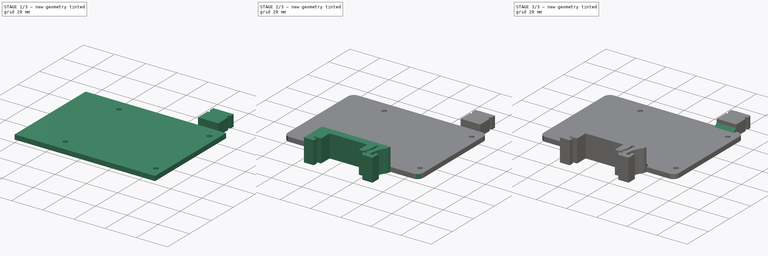
[diagram: build sequence overview — one tinted view per stage of 3, left to right]
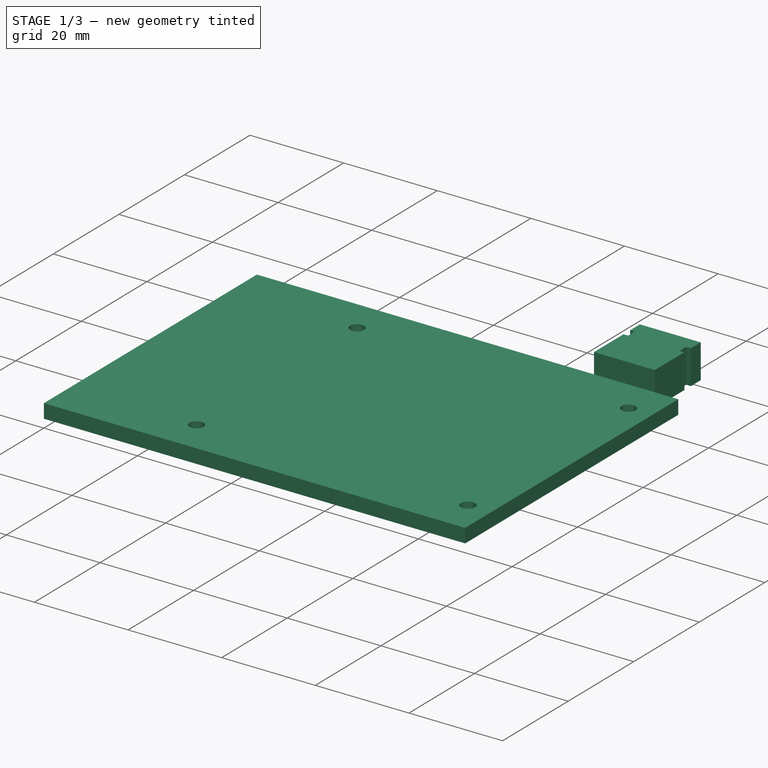
[diagram: stage 1 of 3 — iso view after this stage's code; geometry added in this stage tinted green]
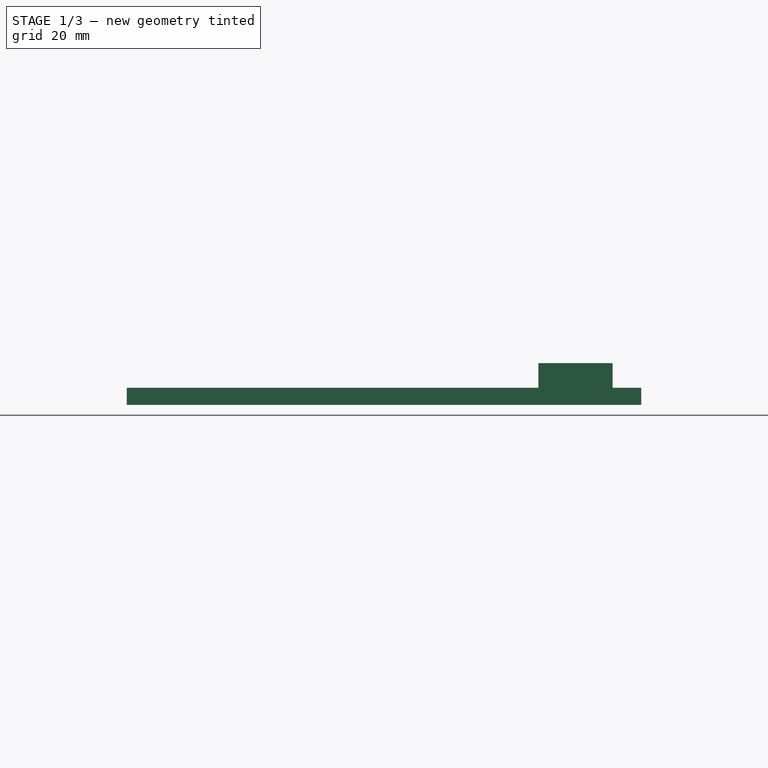
[diagram: stage 1 of 3 — front view after this stage's code; geometry added in this stage tinted green]
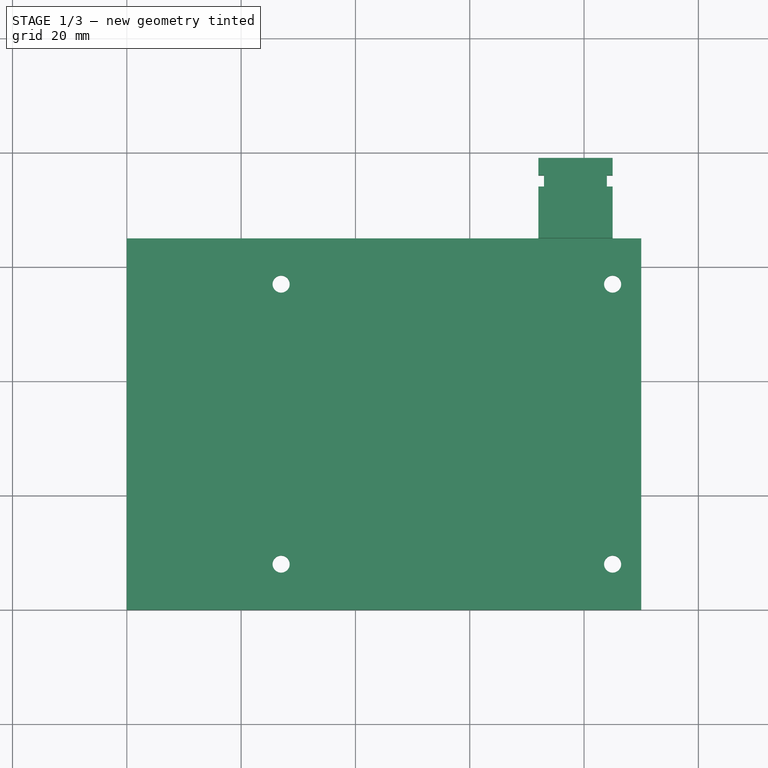
[diagram: stage 1 of 3 — top view after this stage's code; geometry added in this stage tinted green]
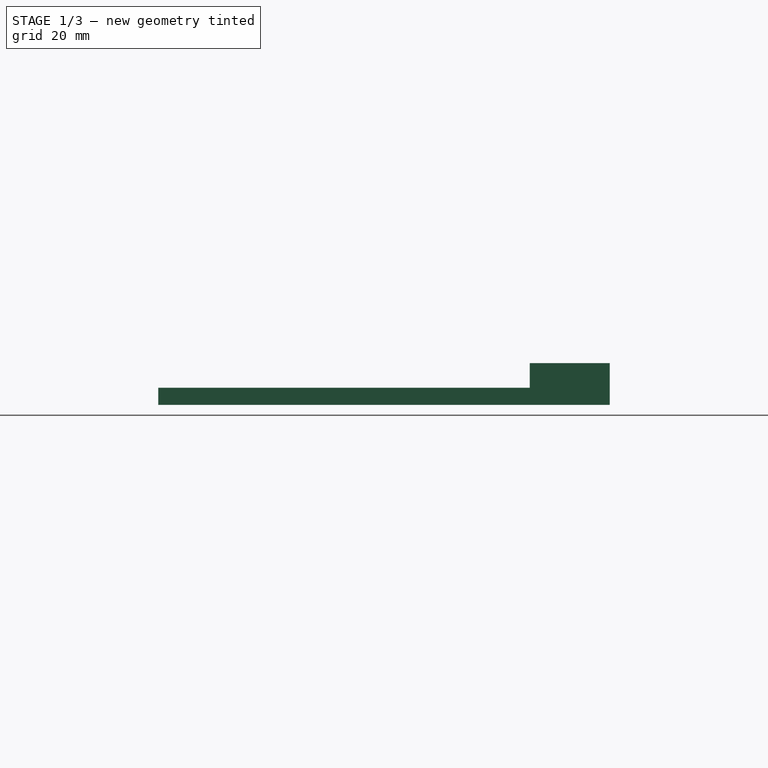
[diagram: stage 1 of 3 — right view after this stage's code; geometry added in this stage tinted green]
FCSTD DOCUMENT  (FreeCAD 0.19R24291 (Git))
Label: RPiDIN
License: All rights reserved
LicenseURL: http://en.wikipedia.org/wiki/All_rights_reserved
objects: Sketcher::SketchObject×3, PartDesign::Pad×3, PartDesign::Fillet×2, PartDesign::Chamfer×1, PartDesign::Body×1
note: 16 computed .brp shape members not serialized (recipe doc carries the construction recipe); baked Part::Feature solids carry a one-line shape summary decoded from their .brp

FEATURE [Sketcher::SketchObject] Sketch
  FullyConstrained = true
  sketch-geometry (16):
    g0: LineSegment StartX=90 StartY=0 StartZ=0 EndX=0 EndY=0 EndZ=0
    g1: LineSegment StartX=0 StartY=0 StartZ=0 EndX=0 EndY=65 EndZ=0
    g2: LineSegment StartX=0 StartY=65 StartZ=0 EndX=90 EndY=65 EndZ=0
    g3: LineSegment StartX=90 StartY=65 StartZ=0 EndX=90 EndY=0 EndZ=0
    g4: Circle CenterX=27 CenterY=57 CenterZ=0 NormalX=0 NormalY=0 NormalZ=-1 AngleXU=0 Radius=1.5
    g5: Circle CenterX=85 CenterY=57 CenterZ=0 NormalX=0 NormalY=0 NormalZ=-1 AngleXU=0 Radius=1.5
    g6: Circle CenterX=85 CenterY=8 CenterZ=0 NormalX=0 NormalY=0 NormalZ=-1 AngleXU=0 Radius=1.5
    g7: Circle CenterX=27 CenterY=8 CenterZ=0 NormalX=0 NormalY=0 NormalZ=-1 AngleXU=0 Radius=1.5
    g8: LineSegment StartX=27 StartY=8 StartZ=0 EndX=85 EndY=8 EndZ=0
    g9: LineSegment StartX=85 StartY=8 StartZ=0 EndX=85 EndY=57 EndZ=0
    g10: LineSegment StartX=85 StartY=57 StartZ=0 EndX=27 EndY=57 EndZ=0
    g11: LineSegment StartX=27 StartY=57 StartZ=0 EndX=27 EndY=8 EndZ=0
    g12: LineSegment StartX=27 StartY=8 StartZ=0 EndX=85 EndY=57 EndZ=0
    g13: LineSegment StartX=27 StartY=57 StartZ=0 EndX=85 EndY=8 EndZ=0
    g14: GeomPoint X=56 Y=32.5 Z=0
    g15: LineSegment StartX=0 StartY=32.5 StartZ=0 EndX=90 EndY=32.5 EndZ=0
  constraints (39):
    c: Coincident(g8,g9)
    c: Coincident(g9,g10)
    c: Coincident(g10,g11)
    c: Coincident(g11,g8)
    c: Horizontal(g8)
    c: Horizontal(g10)
    c: Vertical(g9)
    c: Vertical(g11)
    c: Coincident(g9,g5)
    c: Equal(g4,g5)
    c: Equal(g5,g6)
    c: Equal(g6,g7)
    c: Diameter(g4) = 3
    c: Coincident(g8,g6)
    c: Coincident(g8,g7)
    c: Coincident(g10,g4)
    c: Vertical(g1)
    c: Vertical(g3)
    c: Horizontal(g2)
    c: Horizontal(g0)
    c: Coincident(g0,g1)
    c: Coincident(g1,g2)
    c: Coincident(g2,g3)
    c: Coincident(g0,g3)
    c: DistanceY(g1,g1) = 65
    c: DistanceX(g2,g2) = 90
    c: DistanceY(g11,g11) = 49
    c: DistanceX(g10,g10) = 58
    c: Coincident(g12,g7)
    c: Coincident(g12,g5)
    c: Coincident(g13,g4)
    c: Coincident(g13,g6)
    c: PointOnObject(g14,g12)
    c: PointOnObject(g14,g13)
    c: Coincident(g0,g-1)
    c: Symmetric(g1,g0,g15)
    c: Symmetric(g2,g0,g15)
    c: PointOnObject(g14,g15)
    c: DistanceX(g5,g2) = 5
FEATURE [PartDesign::Pad] Pad
  Direction = (1,1,1)
  Length = 3
  Length2 = 100
  Profile = -> Sketch
  Refine = true
  Type = 0
FEATURE [Sketcher::SketchObject] Sketch002
  ExternalGeometry = -> [Pad]
  FullyConstrained = true
  MapMode = 5
  Support = -> [XY_Plane]
  sketch-geometry (13):
    g0: LineSegment StartX=85 StartY=65 StartZ=0 EndX=85 EndY=74 EndZ=0
    g1: LineSegment StartX=85 StartY=74 StartZ=0 EndX=84 EndY=74 EndZ=0
    g2: LineSegment StartX=84 StartY=74 StartZ=0 EndX=84 EndY=76 EndZ=0
    g3: LineSegment StartX=84 StartY=76 StartZ=0 EndX=85 EndY=76 EndZ=0
    g4: LineSegment StartX=85 StartY=76 StartZ=0 EndX=85 EndY=79 EndZ=0
    g5: LineSegment StartX=85 StartY=79 StartZ=0 EndX=72 EndY=79 EndZ=0
    g6: LineSegment StartX=72 StartY=79 StartZ=0 EndX=72 EndY=76 EndZ=0
    g7: LineSegment StartX=72 StartY=76 StartZ=0 EndX=73 EndY=76 EndZ=0
    g8: LineSegment StartX=73 StartY=76 StartZ=0 EndX=73 EndY=74 EndZ=0
    g9: LineSegment StartX=73 StartY=74 StartZ=0 EndX=72 EndY=74 EndZ=0
    g10: LineSegment StartX=72 StartY=74 StartZ=0 EndX=72 EndY=65 EndZ=0
    g11: LineSegment StartX=72 StartY=65 StartZ=0 EndX=85 EndY=65 EndZ=0
    g12: LineSegment StartX=78.5 StartY=79 StartZ=0 EndX=78.5 EndY=65 EndZ=0
  constraints (36):
    c: PointOnObject(g0,g-4)
    c: Vertical(g0)
    c: Coincident(g0,g1)
    c: Horizontal(g1)
    c: Coincident(g1,g2)
    c: Vertical(g2)
    c: Coincident(g2,g3)
    c: Horizontal(g3)
    c: Coincident(g3,g4)
    c: Vertical(g4)
    c: Coincident(g4,g5)
    c: Horizontal(g5)
    c: Coincident(g5,g6)
    c: Vertical(g6)
    c: Coincident(g6,g7)
    c: Horizontal(g7)
    c: Coincident(g7,g8)
    c: Vertical(g8)
    c: Coincident(g8,g9)
    c: Horizontal(g9)
    c: Coincident(g9,g10)
    c: PointOnObject(g10,g-4)
    c: Vertical(g10)
    c: Coincident(g10,g11)
    c: Coincident(g11,g0)
    c: Symmetric(g5,g4,g12)
    c: Symmetric(g10,g0,g12)
    c: Symmetric(g9,g0,g12)
    c: Symmetric(g2,g7,g12)
    c: Equal(g3,g1)
    c: DistanceX(g9,g9) = 1
    c: DistanceY(g8,g8) = 2
    c: DistanceY(g6,g6) = 3
    c: DistanceX(g5,g5) = 13
    c: DistanceX(g4,g-4) = 5
    c: DistanceY(g0,g4) = 14
FEATURE [Sketcher::SketchObject] Sketch003
  ExternalGeometry = -> [Pad]
  FullyConstrained = true
  MapMode = 5
  Support = -> [XY_Plane]
  sketch-geometry (27):
    g0: LineSegment StartX=25.5 StartY=0 StartZ=0 EndX=25.5 EndY=-17 EndZ=0
    g1: LineSegment StartX=25.5 StartY=-17 StartZ=0 EndX=32 EndY=-17 EndZ=0
    g2: LineSegment StartX=32 StartY=-17 StartZ=0 EndX=32 EndY=-14 EndZ=0
    g3: LineSegment StartX=32 StartY=-14 StartZ=0 EndX=29.5 EndY=-14 EndZ=0
    g4: LineSegment StartX=29.5 StartY=-14 StartZ=0 EndX=29.5 EndY=-12.8 EndZ=0
    g5: LineSegment StartX=29.5 StartY=-12.8 StartZ=0 EndX=34 EndY=-12.8 EndZ=0
    g6: LineSegment StartX=34 StartY=-12.8 StartZ=0 EndX=34 EndY=-4.8 EndZ=0
    g7: LineSegment StartX=34 StartY=-4.8 StartZ=0 EndX=59 EndY=-4.8 EndZ=0
    g8: LineSegment StartX=59 StartY=-4.8 StartZ=0 EndX=59 EndY=-12.8 EndZ=0
    g9: LineSegment StartX=59 StartY=-12.8 StartZ=0 EndX=61.826 EndY=-12.8 EndZ=0
    g10: LineSegment StartX=67 StartY=-14 StartZ=0 EndX=69 EndY=-14 EndZ=0
    g11: LineSegment StartX=69 StartY=-14 StartZ=0 EndX=69 EndY=-11 EndZ=0
    g12: LineSegment StartX=69 StartY=-11 StartZ=0 EndX=71 EndY=-11 EndZ=0
    g13: LineSegment StartX=71 StartY=-11 StartZ=0 EndX=71 EndY=-17 EndZ=0
    g14: LineSegment StartX=71 StartY=-17 StartZ=0 EndX=64.2321 EndY=-17 EndZ=0
    g15: LineSegment StartX=64.2321 StartY=-17 StartZ=0 EndX=62.5 EndY=-14 EndZ=0
    g16: LineSegment StartX=62.5 StartY=-14 StartZ=0 EndX=64.5 EndY=-14 EndZ=0
    g17: LineSegment StartX=64.5 StartY=-14 StartZ=0 EndX=64.5 EndY=-12.8 EndZ=0
    g18: LineSegment StartX=64.5 StartY=-12.8 StartZ=0 EndX=63.5 EndY=-12.8 EndZ=0
    g19: ArcOfCircle CenterX=46.5 CenterY=-4.8 CenterZ=0 NormalX=0 NormalY=0 NormalZ=1 AngleXU=0 Radius=17.2883 StartAngle=5.8021 EndAngle=6.36644
    g20: ArcOfCircle CenterX=46.5 CenterY=-4.8 CenterZ=0 NormalX=0 NormalY=0 NormalZ=1 AngleXU=0 Radius=18.7883 StartAngle=5.84334 EndAngle=6.36644
    g21: ArcOfCircle CenterX=64.4758 CenterY=-3.3 CenterZ=0 NormalX=0 NormalY=0 NormalZ=1 AngleXU=0 Radius=0.75 StartAngle=0.0832526 EndAngle=3.22485
    g22: LineSegment StartX=25.5 StartY=0 StartZ=0 EndX=71 EndY=0 EndZ=0
    g23: ArcOfCircle CenterX=65.2044 CenterY=7.39998e-07 CenterZ=0 NormalX=0 NormalY=0 NormalZ=1 AngleXU=0 Radius=5.79561 StartAngle=5.67741 EndAngle=6.28319
    g24: LineSegment StartX=71 StartY=0 StartZ=0 EndX=71 EndY=-11 EndZ=0
    g25: LineSegment StartX=67 StartY=-14 StartZ=0 EndX=67 EndY=-12.8 EndZ=0
    g26: ArcOfCircle CenterX=83.6844 CenterY=-12.8 CenterZ=0 NormalX=0 NormalY=0 NormalZ=1 AngleXU=0 Radius=16.6844 StartAngle=2.53582 EndAngle=3.14159
  constraints (81):
    c: Vertical(g0)
    c: Coincident(g0,g1)
    c: Horizontal(g1)
    c: Coincident(g1,g2)
    c: Vertical(g2)
    c: Coincident(g2,g3)
    c: Horizontal(g3)
    c: Coincident(g3,g4)
    c: Vertical(g4)
    c: Coincident(g4,g5)
    c: Horizontal(g5)
    c: Coincident(g5,g6)
    c: Vertical(g6)
    c: Coincident(g6,g7)
    c: Horizontal(g7)
    c: Coincident(g7,g8)
    c: Vertical(g8)
    c: Coincident(g8,g9)
    c: Horizontal(g9)
    c: Horizontal(g10)
    c: Coincident(g10,g11)
    c: Vertical(g11)
    c: Coincident(g11,g12)
    c: Horizontal(g12)
    c: Coincident(g12,g13)
    c: Vertical(g13)
    c: Coincident(g13,g14)
    c: Horizontal(g14)
    c: Coincident(g14,g15)
    c: Coincident(g15,g16)
    c: Horizontal(g16)
    c: Coincident(g16,g17)
    c: Vertical(g17)
    c: Coincident(g17,g18)
    c: Horizontal(g18)
    c: DistanceY(g2,g2) = 3
    c: DistanceX(g3,g3) = 2.5
    c: DistanceX(g0,g3) = 4
    c: Horizontal(g9,g18)
    c: DistanceY(g4,g4) = 1.2
    c: DistanceX(g5,g5) = 4.5
    c: DistanceY(g6,g6) = 8
    c: Horizontal(g14,g1)
    c: Horizontal(g15,g2)
    c: Equal(g17,g4)
    c: DistanceX(g12,g12) = 2
    c: DistanceY(g13,g13) = 6
    c: DistanceY(g11,g11) = 3
    c: Coincident(g19,g9)
    c: Coincident(g20,g19)
    c: Coincident(g20,g18)
    c: Tangent(g21,g19) = 1.5708
    c: Tangent(g21,g20) = -1.5708
    c: Radius(g21) = 0.75
    c: Symmetric(g6,g7,g19)
    c: DistanceX(g3,g16) = 35
    c: DistanceX(g18,g18) = 1
    c: DistanceX(g8,g17) = 5.5
    c: DistanceY(g0,g0) = 17
    c: DistanceX(g10,g10) = 2
    c: DistanceX(g16,g10) = 2.5
    c: Vertical(g22,g12)
    c: DistanceX(g2,g15) = 30.5
    c: Angle(g15,g16) = 1.0472
    c: Horizontal(g22)
    c: Coincident(g22,g0)
    c: DistanceY(g7,g21) = 1.5
    c: PointOnObject(g-1,g22)
    c: Tangent(g-4,g0)
    c: Coincident(g23,g22)
    c: Coincident(g24,g22)
    c: Coincident(g24,g12)
    c: Tangent(g24,g23)
    c: Coincident(g25,g10)
    c: Vertical(g25)
    c: Coincident(g26,g23)
    c: Tangent(g23,g26)
    c: Tangent(g26,g25)
    c: Coincident(g26,g25)
    c: Horizontal(g25,g17)
    c: Horizontal(g23,g21)
FEATURE [PartDesign::Pad] Pad001  label="Strain Relief"
  BaseFeature = -> Pad
  Direction = (1,1,1)
  Length = 7.3
  Length2 = 100
  Profile = -> Sketch002
  Refine = true
  Type = 0
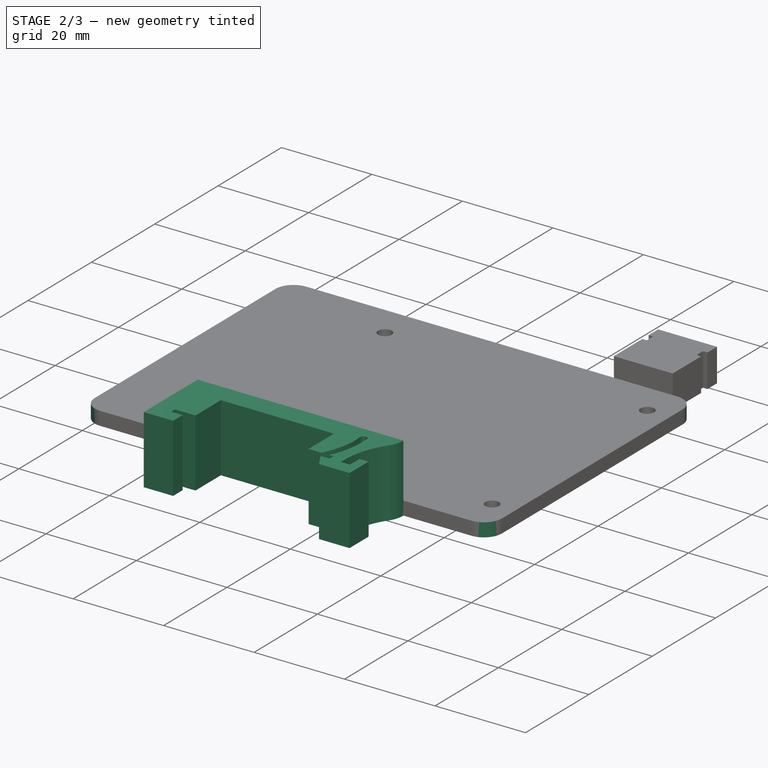
[diagram: stage 2 of 3 — iso view after this stage's code; geometry added in this stage tinted green]
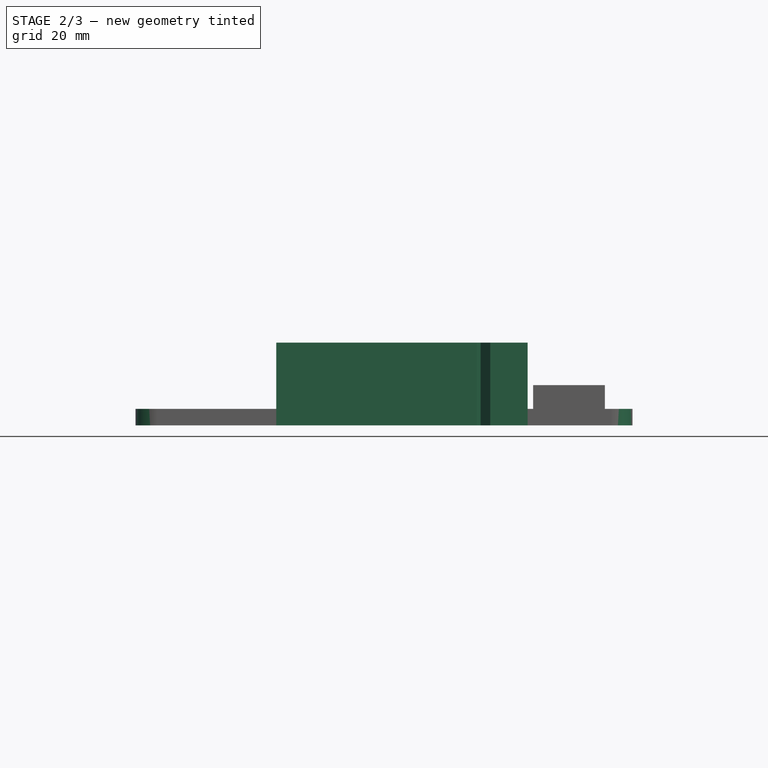
[diagram: stage 2 of 3 — front view after this stage's code; geometry added in this stage tinted green]
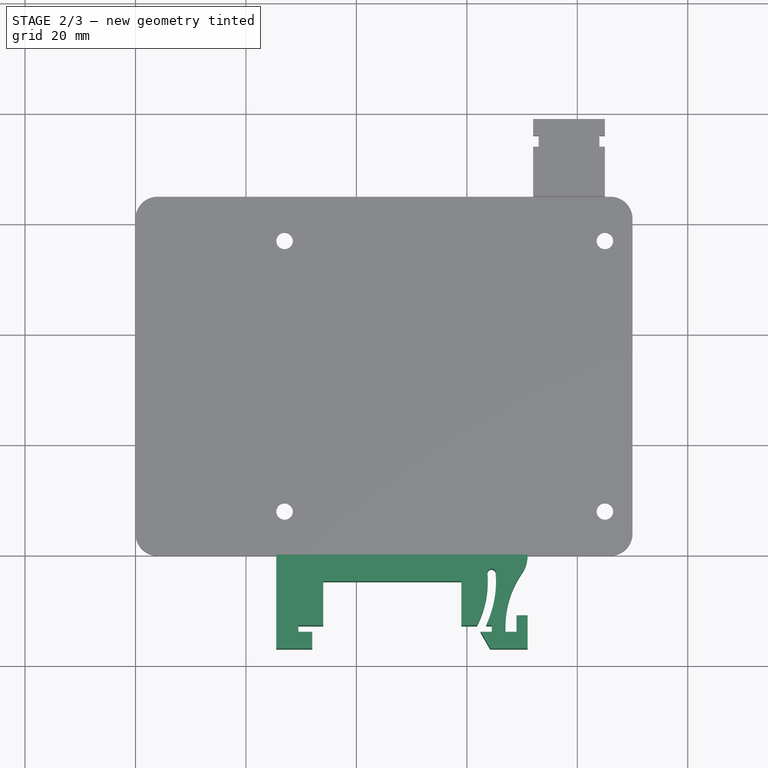
[diagram: stage 2 of 3 — top view after this stage's code; geometry added in this stage tinted green]
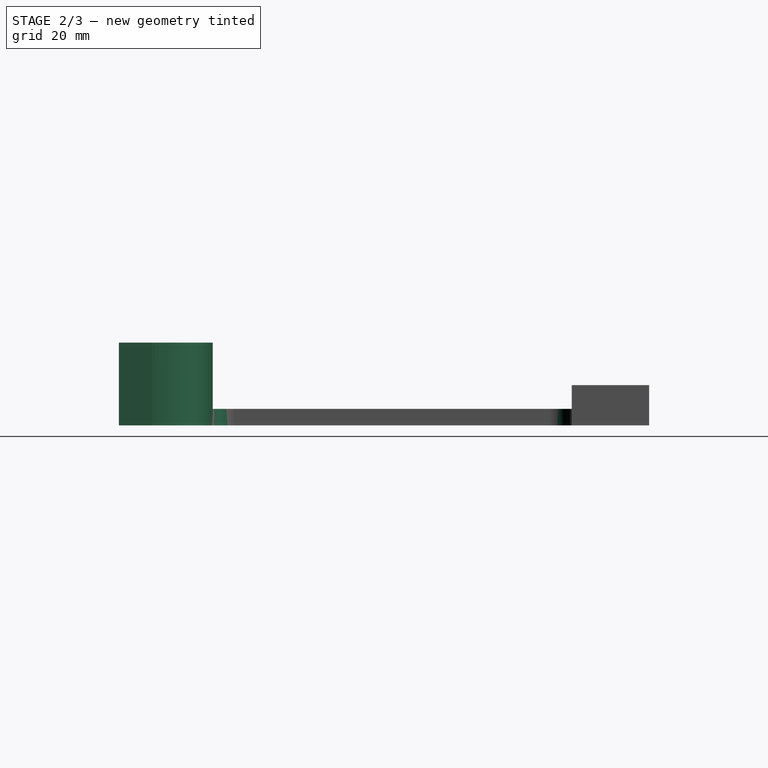
[diagram: stage 2 of 3 — right view after this stage's code; geometry added in this stage tinted green]
FEATURE [PartDesign::Pad] Pad002  label="DIN Clip"
  BaseFeature = -> Pad001
  Direction = (1,1,1)
  Length = 15
  Length2 = 100
  Profile = -> Sketch003
  Refine = true
  Type = 0
FEATURE [PartDesign::Fillet] Fillet
  Base = -> Pad002 [Edge4,Edge20,Edge25,Edge23]
  BaseFeature = -> Pad002
  Radius = 4
  Refine = true
  SupportTransform = false
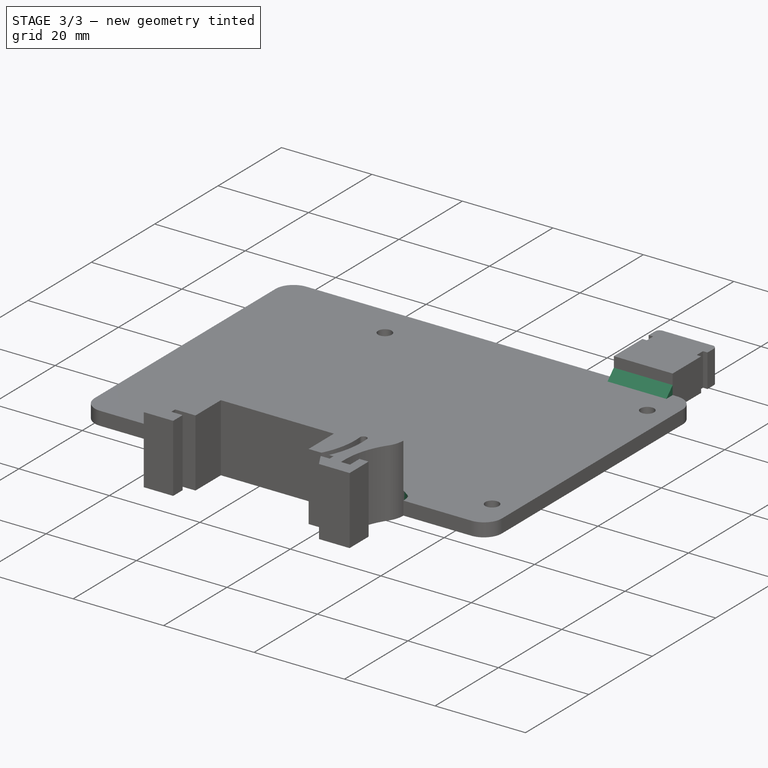
[diagram: stage 3 of 3 — iso view after this stage's code; geometry added in this stage tinted green]
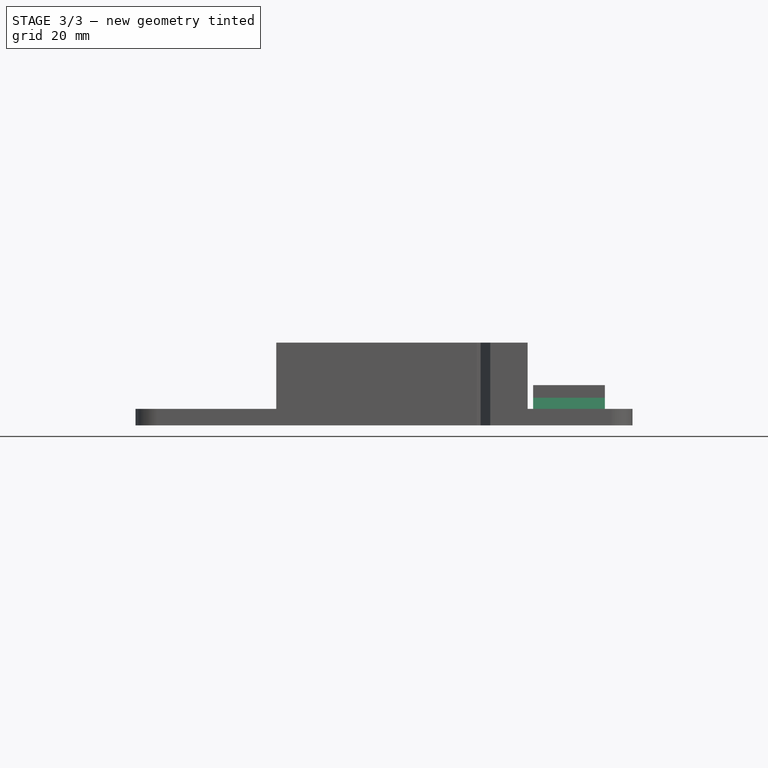
[diagram: stage 3 of 3 — front view after this stage's code; geometry added in this stage tinted green]
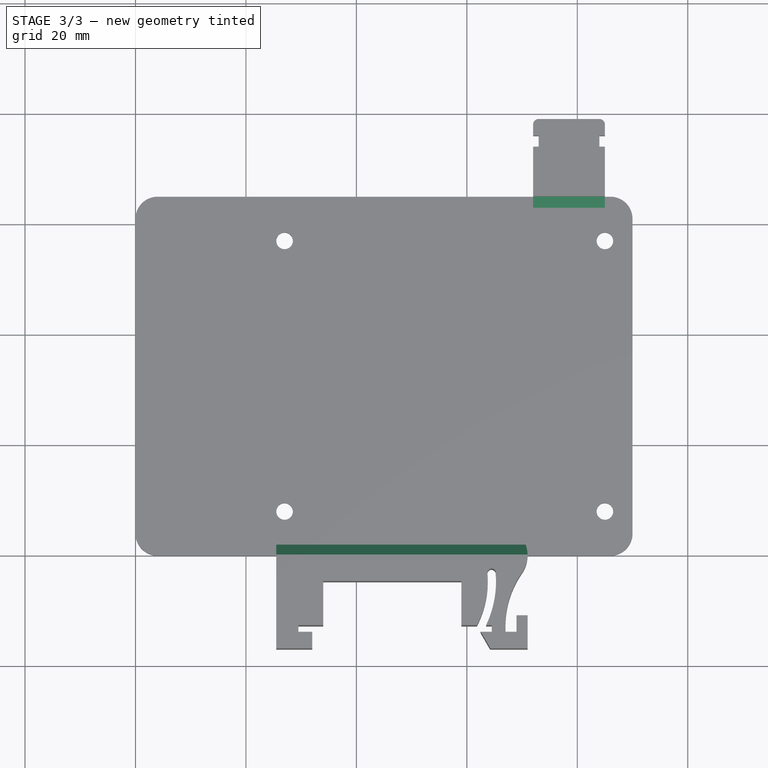
[diagram: stage 3 of 3 — top view after this stage's code; geometry added in this stage tinted green]
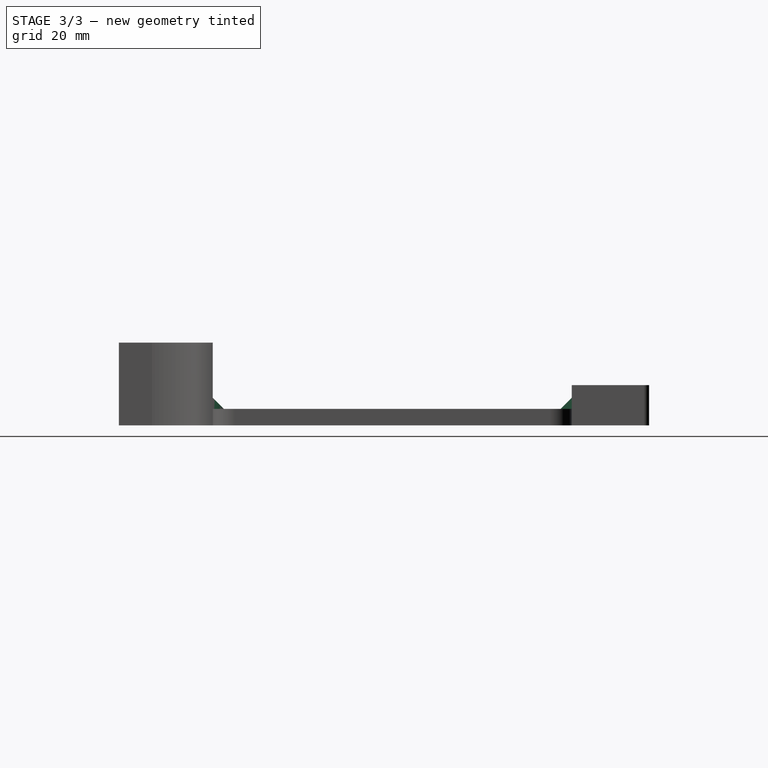
[diagram: stage 3 of 3 — right view after this stage's code; geometry added in this stage tinted green]
FEATURE [PartDesign::Fillet] Fillet002
  Base = -> Fillet [Edge99,Edge103]
  BaseFeature = -> Fillet
  Radius = 1
  Refine = true
  SupportTransform = false
FEATURE [PartDesign::Chamfer] Chamfer
  Angle = 45
  Base = -> Fillet002 [Edge162,Edge163]
  BaseFeature = -> Fillet002
  ChamferType = 0
  FlipDirection = false
  Refine = true
  Size = 2
  Size2 = 1
  SupportTransform = false
FEATURE [PartDesign::Body] Body
  Group = -> [Sketch,Pad,Sketch002,Sketch003,Pad001,Pad002,Fillet,Fillet002,Chamfer]
  Origin = -> Origin
  Tip = -> Chamfer
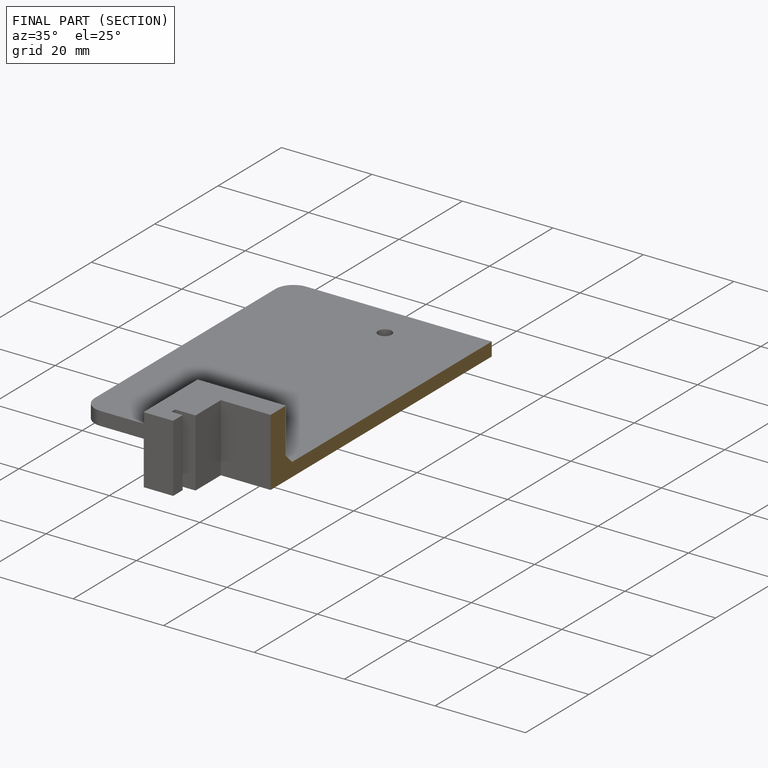
[diagram: finished part — half-section view (interior)]
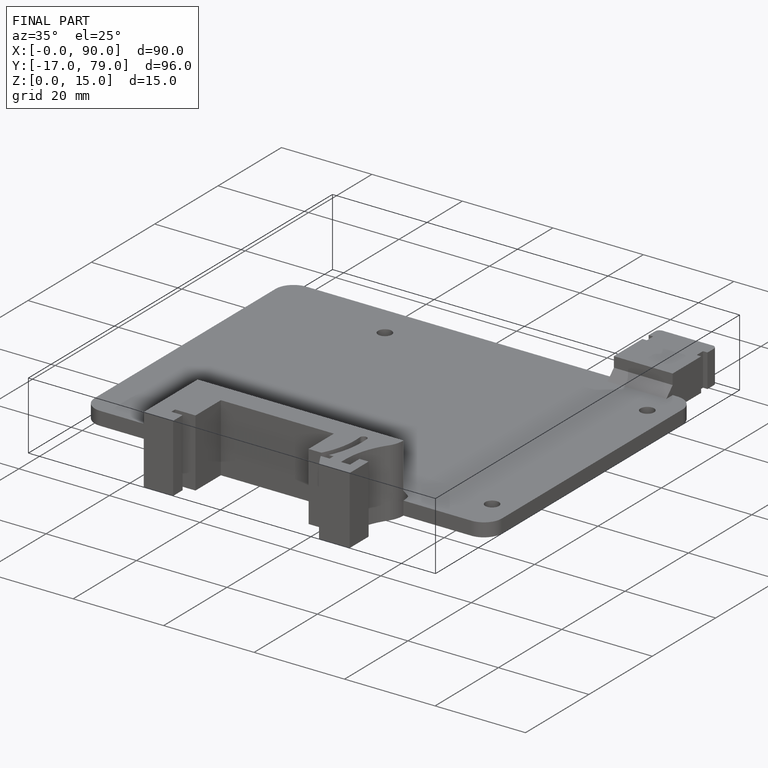
[diagram: finished part — iso view with bounding-box wireframe]
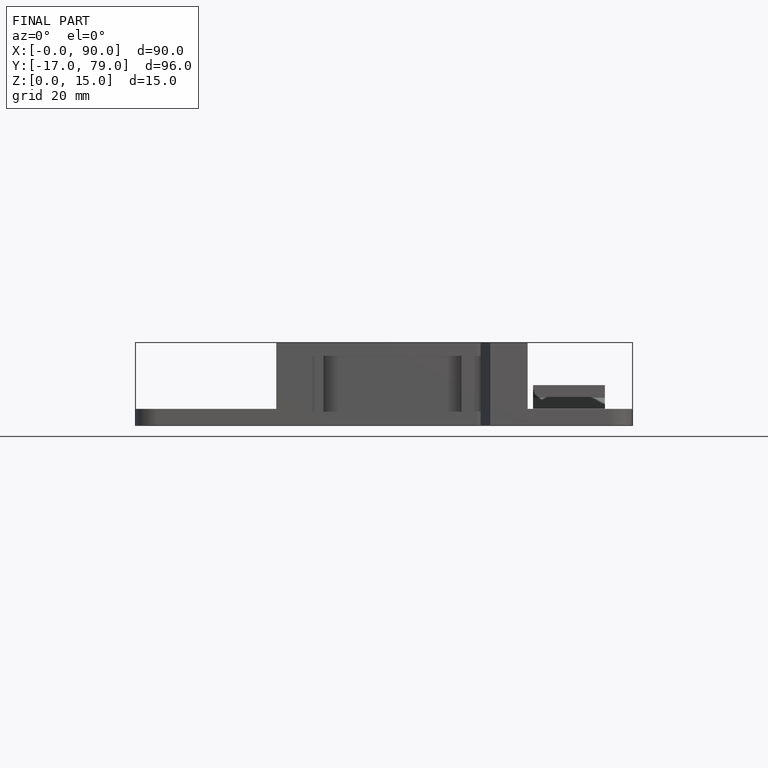
[diagram: finished part — front view with bounding-box wireframe]
